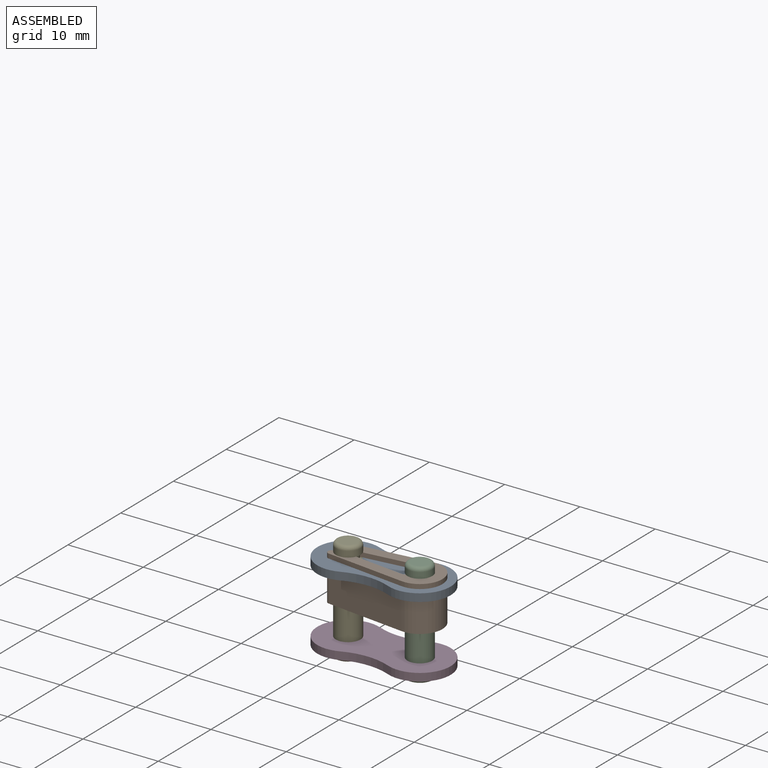
[diagram: assembled view]
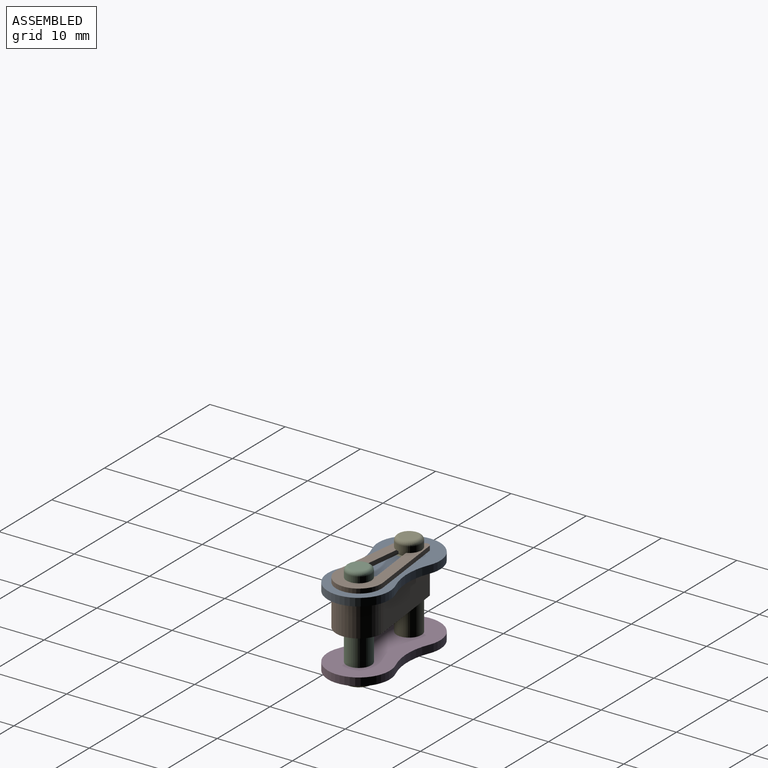
[diagram: assembled view, second angle]
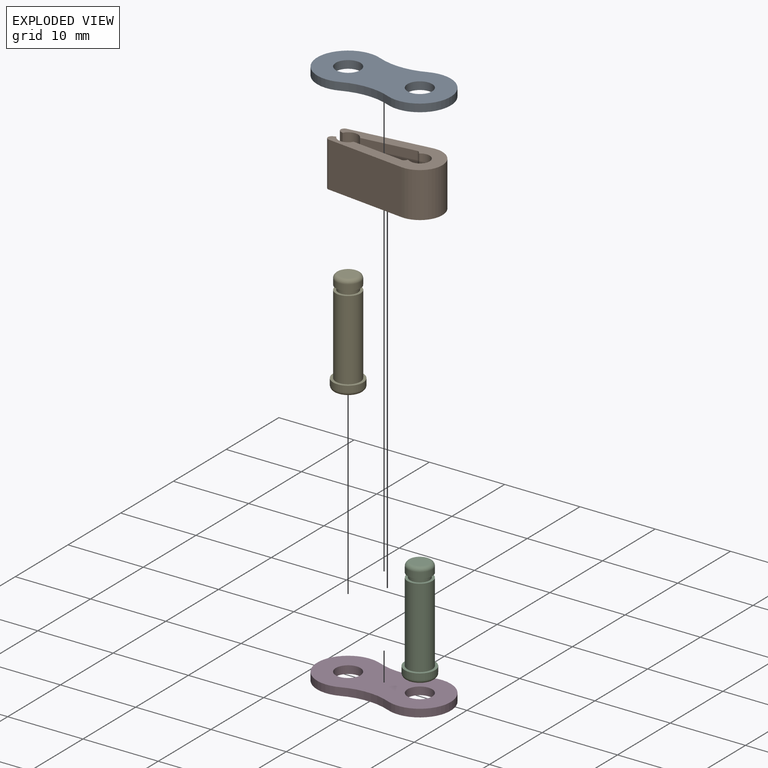
[diagram: exploded view]
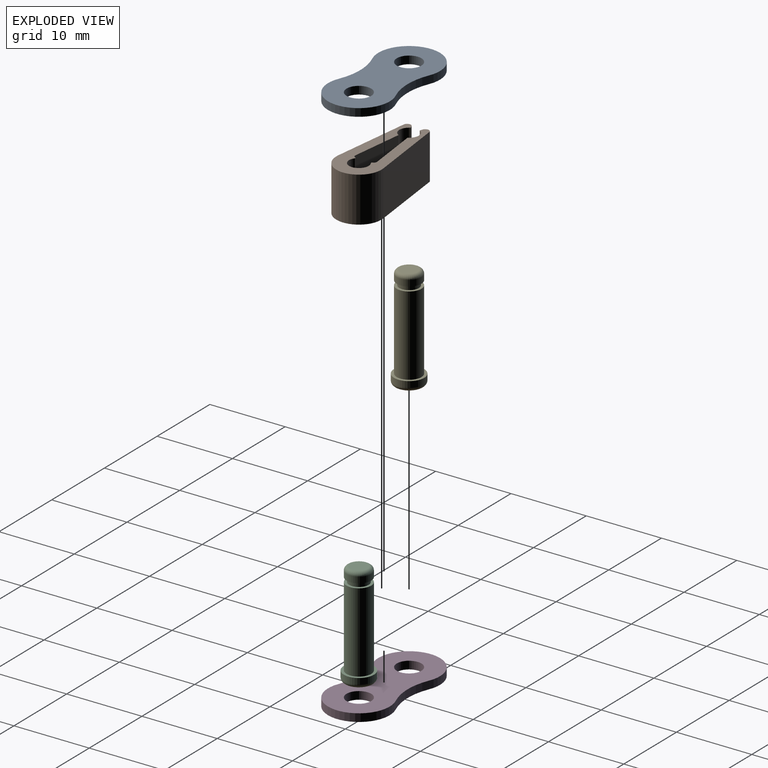
[diagram: exploded view, second angle]
ASSEMBLY  parts=5 mates=4
PART A: 8 faces, bbox 17.7x8.2x1 mm
  f0: cylinder r=8.2mm len=6.35mm, axis (0,0,-1), area 6.8mm2, adj f1,f4,f6,f7
  f1: cylinder r=4.1mm len=8.2mm, axis (0,0,-1), area 16.8mm2, adj f0,f2,f6,f7
  f2: cylinder r=8.2mm len=6.35mm, axis (0,0,-1), area 6.8mm2, adj f1,f4,f6,f7
  f3: cylinder r=1.64mm len=3.28mm, axis (0,0,-1), area 10.7mm2, adj f6,f7
  f4: cylinder r=4.1mm len=8.2mm, axis (0,0,-1), area 16.8mm2, adj f0,f2,f6,f7
  f5: cylinder r=1.64mm len=3.28mm, axis (0,0,-1), area 10.7mm2, adj f6,f7
  f6: plane 17.73x8.2mm, normal (0,0,1), area 103.8mm2, adj f0,f1,f2,f3,f4,f5
  f7: plane 17.73x8.2mm, normal (0,0,-1), area 103.8mm2, adj f0,f1,f2,f3,f4,f5
PART B: 18 faces, bbox 14.4x6x6 mm
  f0: plane 6.98x6mm, normal (0.12,0.99,0), area 42.2mm2, adj f1,f15,f16,f17
  f1: cylinder r=1.3mm len=6mm, axis (0,0,-1), area 17mm2, adj f0,f2,f16,f17
  f2: plane 6x0.36mm, normal (-0.36,0.93,0), area 2.3mm2, adj f1,f3,f16,f17
  f3: cylinder r=0.5mm len=6mm, axis (0,0,-1), area 8mm2, adj f2,f4,f16,f17
  f4: plane 10.56x6mm, normal (-0.12,-0.99,0), area 63.8mm2, adj f3,f5,f16,f17
  f5: cylinder r=3mm len=6mm, axis (0,0,-1), area 60.9mm2, adj f4,f6,f16,f17
  f6: plane 10.56x6mm, normal (-0.12,0.99,0), area 63.8mm2, adj f5,f7,f16,f17
  f7: cylinder r=0.5mm len=6mm, axis (0,0,-1), area 8mm2, adj f6,f8,f16,f17
  f8: plane 6x0.36mm, normal (-0.36,-0.93,0), area 2.3mm2, adj f7,f9,f16,f17
  f9: cylinder r=1.3mm len=6mm, axis (0,0,-1), area 17mm2, adj f8,f10,f16,f17
  f10: plane 6.98x6mm, normal (0.12,-0.99,0), area 42.2mm2, adj f9,f11,f16,f17
  f11: cylinder r=0.4mm len=6mm, axis (0,0,-1), area 3.4mm2, adj f10,f12,f16,f17
  f12: cylinder r=0.15mm len=6mm, axis (0,0,-1), area 1.7mm2, adj f11,f13,f16,f17
  f13: cylinder r=1.3mm len=6mm, axis (0,0,-1), area 33.8mm2, adj f12,f14,f16,f17
  f14: cylinder r=0.15mm len=6mm, axis (0,0,-1), area 1.7mm2, adj f13,f15,f16,f17
  f15: cylinder r=0.4mm len=6mm, axis (0,0,-1), area 3.4mm2, adj f0,f14,f16,f17
  f16: plane 14.36x6mm, normal (0,0,1), area 40.6mm2, adj f0,f1,f2,f3,f4,f5,f6,f7
  f17: plane 14.36x6mm, normal (0,0,-1), area 40.6mm2, adj f0,f1,f2,f3,f4,f5,f6,f7
PART C: 11 faces, bbox 4.3x13.8x4.3 mm
  f0: plane 3x3mm, normal (0,-1,0), area 7.1mm2, adj f10
  f1: plane 2.28x2.28mm, normal (0,1,0), area 4.1mm2, adj f9
  f2: cylinder r=1.64mm len=3.28mm, axis (0,1,0), area 8.2mm2, adj f3,f9
  f3: plane 3.28x3.28mm, normal (0,-1,0), area 3.1mm2, adj f2,f4
  f4: cylinder r=1.3mm len=2.6mm, axis (0,1,0), area 4.9mm2, adj f3,f5
  f5: plane 3.28x3.28mm, normal (0,1,0), area 3.1mm2, adj f4,f6
  f6: cylinder r=1.64mm len=10.6mm, axis (0,1,0), area 109.2mm2, adj f5,f7
  f7: plane 4x4mm, normal (0,1,0), area 4.1mm2, adj f6,f8
  f8: cylinder r=2mm len=4mm, axis (0,1,0), area 10.1mm2, adj f7,f10
  f9: torus R=1.14mm, axis (0,-1,0), area 7.2mm2, adj f1,f2
  f10: torus R=1.5mm, axis (0,1,0), area 9mm2, adj f0,f8
PART D: same geometry as A
PART E: same geometry as C
PLACE A rot(axis=(1,0,0),180deg) t=(-14.58,-1.71,9.82)mm
PLACE B t=(-14.58,-1.71,4.42)mm
PLACE C rot(axis=(1,0,0),90deg) t=(-5.05,-1.71,-2.08)mm
PLACE D t=(-14.58,-1.71,-0.78)mm
PLACE E rot(axis=(1,0,0),90deg) t=(-14.58,-1.71,-2.08)mm
MATE fastened E.f2 <-> D.f3  axis (0,0,1) through (-14.58,-1.71,-0.78)mm
MATE fastened B.f13 <-> C.f2  axis (0,0,1) through (-5.05,-1.71,10.42)mm
MATE fastened A.f5 <-> C.f2  axis (0,0,1) through (-5.05,-1.71,9.82)mm
MATE fastened C.f2 <-> D.f4  axis (0,0,1) through (-5.05,-1.71,-0.78)mm
